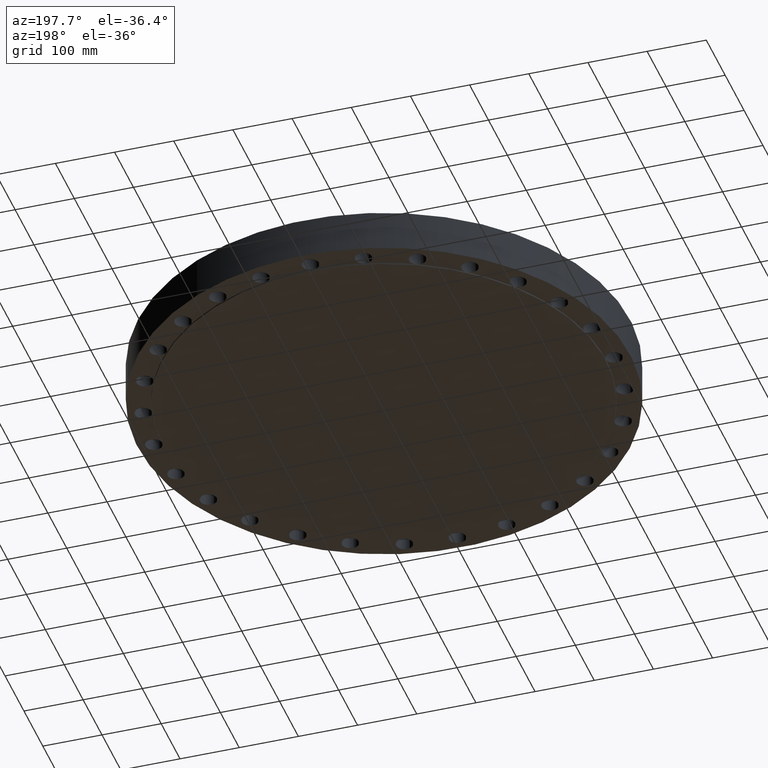
[diagram: clean part render]
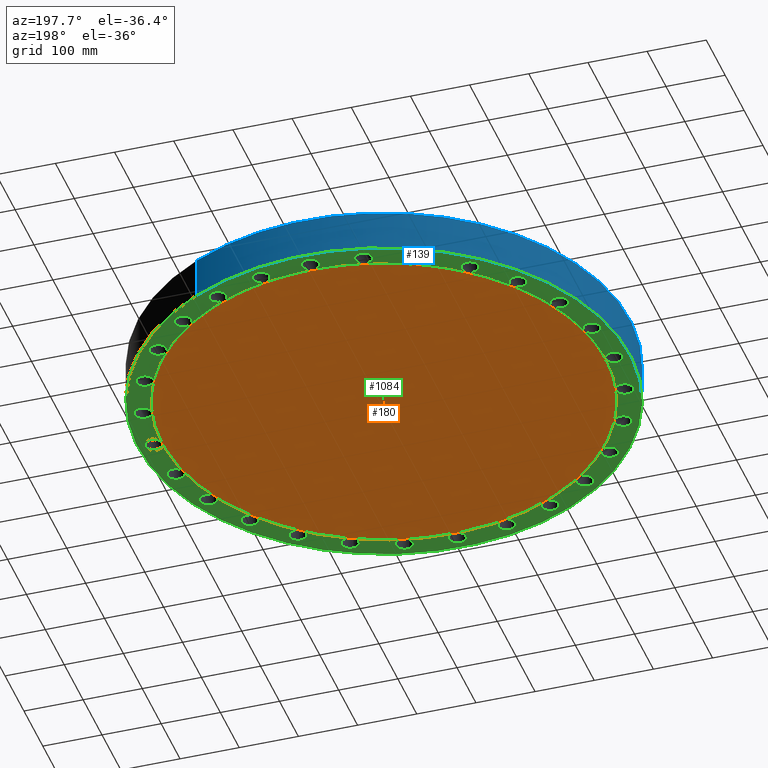
[diagram: same view with three faces highlighted in distinct colors, each labeled with its STEP entity id]
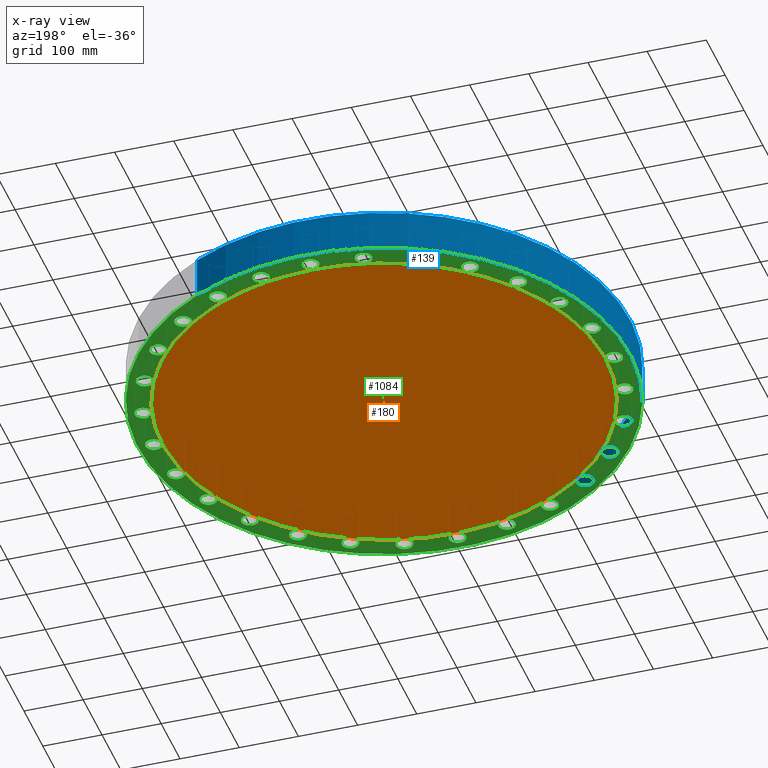
[diagram: x-ray of the same camera — body ghosted, the three highlighted faces saturated]
A machine part, auxiliary view with three faces highlighted in distinct colors.
The next image is the same camera in x-ray (body ghosted, the three faces saturated) — at least one of them is partly hidden behind the body in this view.
Their STEP definitions:

[orange] entity #180 — the highlighted planar face has unit normal (0, 0, -1).
#160=AXIS2_PLACEMENT_3D('Plane Axis2P3D',#157,#158,#159) ;
#164=AXIS2_PLACEMENT_3D('Circle Axis2P3D',#162,#163,$) ;
#173=AXIS2_PLACEMENT_3D('Circle Axis2P3D',#171,#172,$) ;
#157=CARTESIAN_POINT('Axis2P3D Location',(0.,0.,-0.0625000000002)) ;
#162=CARTESIAN_POINT('Axis2P3D Location',(0.,0.,-0.0625000000002)) ;
#166=CARTESIAN_POINT('Vertex',(7.07152669444,12.9443427879,-0.0625000000003)) ;
#168=CARTESIAN_POINT('Vertex',(-7.07152669444,-12.9443427879,-0.0625000000003)) ;
#171=CARTESIAN_POINT('Axis2P3D Location',(0.,0.,-0.0625000000002)) ;
#158=DIRECTION('Axis2P3D Direction',(0.,0.,-0.0393700787402)) ;
#159=DIRECTION('Axis2P3D XDirection',(0.0393700787402,0.,0.)) ;
#163=DIRECTION('Axis2P3D Direction',(0.,0.,-0.0393700787402)) ;
#172=DIRECTION('Axis2P3D Direction',(0.,0.,-0.0393700787402)) ;
#177=ORIENTED_EDGE('',*,*,#170,.T.) ;
#178=ORIENTED_EDGE('',*,*,#175,.T.) ;
#180=ADVANCED_FACE('PartBody',(#179),#161,.T.) ;
#165=CIRCLE('generated circle',#164,14.7500000001) ;
#174=CIRCLE('generated circle',#173,14.7500000001) ;
#170=EDGE_CURVE('',#167,#169,#165,.T.) ;
#175=EDGE_CURVE('',#169,#167,#174,.T.) ;
#176=EDGE_LOOP('',(#177,#178)) ;
#179=FACE_OUTER_BOUND('',#176,.T.) ;
#161=PLANE('',#160) ;
#167=VERTEX_POINT('',#166) ;
#169=VERTEX_POINT('',#168) ;

[blue] entity #139 — the highlighted cylindrical surface (partial cylindrical patch) has radius 415.925 mm, axis along (0, 0, -1).
#103=AXIS2_PLACEMENT_3D('Cylinder Axis2P3D',#100,#101,#102) ;
#107=AXIS2_PLACEMENT_3D('Circle Axis2P3D',#105,#106,$) ;
#123=AXIS2_PLACEMENT_3D('Circle Axis2P3D',#121,#122,$) ;
#100=CARTESIAN_POINT('Axis2P3D Location',(0.,0.,1.34375000001)) ;
#105=CARTESIAN_POINT('Axis2P3D Location',(0.,0.,2.51767111096E-015)) ;
#109=CARTESIAN_POINT('Vertex',(-7.85059319468,-14.370414451,2.23792987641E-015)) ;
#111=CARTESIAN_POINT('Vertex',(7.85059319468,14.370414451,2.23792987641E-015)) ;
#114=CARTESIAN_POINT('Line Origine',(-7.85059319468,-14.370414451,1.37500000001)) ;
#118=CARTESIAN_POINT('Vertex',(-7.85059319468,-14.370414451,2.75000000001)) ;
#121=CARTESIAN_POINT('Axis2P3D Location',(0.,0.,2.75000000001)) ;
#125=CARTESIAN_POINT('Vertex',(7.85059319468,14.370414451,2.75000000001)) ;
#128=CARTESIAN_POINT('Line Origine',(7.85059319468,14.370414451,1.37500000001)) ;
#101=DIRECTION('Axis2P3D Direction',(0.,0.,-0.0393700787402)) ;
#102=DIRECTION('Axis2P3D XDirection',(0.0188750212049,0.0345504945626,0.)) ;
#106=DIRECTION('Axis2P3D Direction',(0.,0.,-0.0393700787402)) ;
#115=DIRECTION('Vector Direction',(0.,0.,-0.0393700787402)) ;
#122=DIRECTION('Axis2P3D Direction',(0.,0.,-0.0393700787402)) ;
#129=DIRECTION('Vector Direction',(0.,0.,-0.0393700787402)) ;
#116=VECTOR('Line Direction',#115,0.0393700787402) ;
#130=VECTOR('Line Direction',#129,0.0393700787402) ;
#134=ORIENTED_EDGE('',*,*,#113,.F.) ;
#135=ORIENTED_EDGE('',*,*,#120,.T.) ;
#136=ORIENTED_EDGE('',*,*,#127,.T.) ;
#137=ORIENTED_EDGE('',*,*,#132,.F.) ;
#139=ADVANCED_FACE('PartBody',(#138),#104,.T.) ;
#108=CIRCLE('generated circle',#107,16.3750000001) ;
#124=CIRCLE('generated circle',#123,16.3750000001) ;
#104=CYLINDRICAL_SURFACE('generated cylinder',#103,16.3750000001) ;
#113=EDGE_CURVE('',#110,#112,#108,.T.) ;
#120=EDGE_CURVE('',#110,#119,#117,.F.) ;
#127=EDGE_CURVE('',#119,#126,#124,.T.) ;
#132=EDGE_CURVE('',#112,#126,#131,.F.) ;
#133=EDGE_LOOP('',(#134,#135,#136,#137)) ;
#138=FACE_OUTER_BOUND('',#133,.T.) ;
#117=LINE('Line',#114,#116) ;
#131=LINE('Line',#128,#130) ;
#110=VERTEX_POINT('',#109) ;
#112=VERTEX_POINT('',#111) ;
#119=VERTEX_POINT('',#118) ;
#126=VERTEX_POINT('',#125) ;

[green] entity #1084 — the highlighted planar face has unit normal (0, 0, -1).
#51=AXIS2_PLACEMENT_3D('Circle Axis2P3D',#49,#50,$) ;
#77=AXIS2_PLACEMENT_3D('Circle Axis2P3D',#75,#76,$) ;
#84=AXIS2_PLACEMENT_3D('Circle Axis2P3D',#82,#83,$) ;
#107=AXIS2_PLACEMENT_3D('Circle Axis2P3D',#105,#106,$) ;
#142=AXIS2_PLACEMENT_3D('Circle Axis2P3D',#140,#141,$) ;
#195=AXIS2_PLACEMENT_3D('Circle Axis2P3D',#193,#194,$) ;
#202=AXIS2_PLACEMENT_3D('Circle Axis2P3D',#200,#201,$) ;
#209=AXIS2_PLACEMENT_3D('Circle Axis2P3D',#207,#208,$) ;
#216=AXIS2_PLACEMENT_3D('Circle Axis2P3D',#214,#215,$) ;
#223=AXIS2_PLACEMENT_3D('Circle Axis2P3D',#221,#222,$) ;
#228=AXIS2_PLACEMENT_3D('Circle Axis2P3D',#226,#227,$) ;
#235=AXIS2_PLACEMENT_3D('Circle Axis2P3D',#233,#234,$) ;
#242=AXIS2_PLACEMENT_3D('Circle Axis2P3D',#240,#241,$) ;
#249=AXIS2_PLACEMENT_3D('Circle Axis2P3D',#247,#248,$) ;
#256=AXIS2_PLACEMENT_3D('Circle Axis2P3D',#254,#255,$) ;
#263=AXIS2_PLACEMENT_3D('Circle Axis2P3D',#261,#262,$) ;
#270=AXIS2_PLACEMENT_3D('Circle Axis2P3D',#268,#269,$) ;
#277=AXIS2_PLACEMENT_3D('Circle Axis2P3D',#275,#276,$) ;
#284=AXIS2_PLACEMENT_3D('Circle Axis2P3D',#282,#283,$) ;
#291=AXIS2_PLACEMENT_3D('Circle Axis2P3D',#289,#290,$) ;
#324=AXIS2_PLACEMENT_3D('Circle Axis2P3D',#322,#323,$) ;
#331=AXIS2_PLACEMENT_3D('Circle Axis2P3D',#329,#330,$) ;
#338=AXIS2_PLACEMENT_3D('Circle Axis2P3D',#336,#337,$) ;
#345=AXIS2_PLACEMENT_3D('Circle Axis2P3D',#343,#344,$) ;
#352=AXIS2_PLACEMENT_3D('Circle Axis2P3D',#350,#351,$) ;
#359=AXIS2_PLACEMENT_3D('Circle Axis2P3D',#357,#358,$) ;
#366=AXIS2_PLACEMENT_3D('Circle Axis2P3D',#364,#365,$) ;
#373=AXIS2_PLACEMENT_3D('Circle Axis2P3D',#371,#372,$) ;
#380=AXIS2_PLACEMENT_3D('Circle Axis2P3D',#378,#379,$) ;
#387=AXIS2_PLACEMENT_3D('Circle Axis2P3D',#385,#386,$) ;
#394=AXIS2_PLACEMENT_3D('Circle Axis2P3D',#392,#393,$) ;
#401=AXIS2_PLACEMENT_3D('Circle Axis2P3D',#399,#400,$) ;
#408=AXIS2_PLACEMENT_3D('Circle Axis2P3D',#406,#407,$) ;
#415=AXIS2_PLACEMENT_3D('Circle Axis2P3D',#413,#414,$) ;
#422=AXIS2_PLACEMENT_3D('Circle Axis2P3D',#420,#421,$) ;
#449=AXIS2_PLACEMENT_3D('Plane Axis2P3D',#446,#447,#448) ;
#457=AXIS2_PLACEMENT_3D('Circle Axis2P3D',#455,#456,$) ;
#464=AXIS2_PLACEMENT_3D('Circle Axis2P3D',#462,#463,$) ;
#471=AXIS2_PLACEMENT_3D('Circle Axis2P3D',#469,#470,$) ;
#476=AXIS2_PLACEMENT_3D('Circle Axis2P3D',#474,#475,$) ;
#483=AXIS2_PLACEMENT_3D('Circle Axis2P3D',#481,#482,$) ;
#490=AXIS2_PLACEMENT_3D('Circle Axis2P3D',#488,#489,$) ;
#495=AXIS2_PLACEMENT_3D('Circle Axis2P3D',#493,#494,$) ;
#502=AXIS2_PLACEMENT_3D('Circle Axis2P3D',#500,#501,$) ;
#509=AXIS2_PLACEMENT_3D('Circle Axis2P3D',#507,#508,$) ;
#514=AXIS2_PLACEMENT_3D('Circle Axis2P3D',#512,#513,$) ;
#521=AXIS2_PLACEMENT_3D('Circle Axis2P3D',#519,#520,$) ;
#528=AXIS2_PLACEMENT_3D('Circle Axis2P3D',#526,#527,$) ;
#533=AXIS2_PLACEMENT_3D('Circle Axis2P3D',#531,#532,$) ;
#540=AXIS2_PLACEMENT_3D('Circle Axis2P3D',#538,#539,$) ;
#547=AXIS2_PLACEMENT_3D('Circle Axis2P3D',#545,#546,$) ;
#552=AXIS2_PLACEMENT_3D('Circle Axis2P3D',#550,#551,$) ;
#559=AXIS2_PLACEMENT_3D('Circle Axis2P3D',#557,#558,$) ;
#566=AXIS2_PLACEMENT_3D('Circle Axis2P3D',#564,#565,$) ;
#571=AXIS2_PLACEMENT_3D('Circle Axis2P3D',#569,#570,$) ;
#578=AXIS2_PLACEMENT_3D('Circle Axis2P3D',#576,#577,$) ;
#585=AXIS2_PLACEMENT_3D('Circle Axis2P3D',#583,#584,$) ;
#590=AXIS2_PLACEMENT_3D('Circle Axis2P3D',#588,#589,$) ;
#597=AXIS2_PLACEMENT_3D('Circle Axis2P3D',#595,#596,$) ;
#604=AXIS2_PLACEMENT_3D('Circle Axis2P3D',#602,#603,$) ;
#609=AXIS2_PLACEMENT_3D('Circle Axis2P3D',#607,#608,$) ;
#616=AXIS2_PLACEMENT_3D('Circle Axis2P3D',#614,#615,$) ;
#623=AXIS2_PLACEMENT_3D('Circle Axis2P3D',#621,#622,$) ;
#628=AXIS2_PLACEMENT_3D('Circle Axis2P3D',#626,#627,$) ;
#635=AXIS2_PLACEMENT_3D('Circle Axis2P3D',#633,#634,$) ;
#642=AXIS2_PLACEMENT_3D('Circle Axis2P3D',#640,#641,$) ;
#647=AXIS2_PLACEMENT_3D('Circle Axis2P3D',#645,#646,$) ;
#654=AXIS2_PLACEMENT_3D('Circle Axis2P3D',#652,#653,$) ;
#661=AXIS2_PLACEMENT_3D('Circle Axis2P3D',#659,#660,$) ;
#666=AXIS2_PLACEMENT_3D('Circle Axis2P3D',#664,#665,$) ;
#673=AXIS2_PLACEMENT_3D('Circle Axis2P3D',#671,#672,$) ;
#680=AXIS2_PLACEMENT_3D('Circle Axis2P3D',#678,#679,$) ;
#685=AXIS2_PLACEMENT_3D('Circle Axis2P3D',#683,#684,$) ;
#692=AXIS2_PLACEMENT_3D('Circle Axis2P3D',#690,#691,$) ;
#699=AXIS2_PLACEMENT_3D('Circle Axis2P3D',#697,#698,$) ;
#704=AXIS2_PLACEMENT_3D('Circle Axis2P3D',#702,#703,$) ;
#711=AXIS2_PLACEMENT_3D('Circle Axis2P3D',#709,#710,$) ;
#718=AXIS2_PLACEMENT_3D('Circle Axis2P3D',#716,#717,$) ;
#723=AXIS2_PLACEMENT_3D('Circle Axis2P3D',#721,#722,$) ;
#730=AXIS2_PLACEMENT_3D('Circle Axis2P3D',#728,#729,$) ;
#737=AXIS2_PLACEMENT_3D('Circle Axis2P3D',#735,#736,$) ;
#742=AXIS2_PLACEMENT_3D('Circle Axis2P3D',#740,#741,$) ;
#749=AXIS2_PLACEMENT_3D('Circle Axis2P3D',#747,#748,$) ;
#756=AXIS2_PLACEMENT_3D('Circle Axis2P3D',#754,#755,$) ;
#761=AXIS2_PLACEMENT_3D('Circle Axis2P3D',#759,#760,$) ;
#768=AXIS2_PLACEMENT_3D('Circle Axis2P3D',#766,#767,$) ;
#775=AXIS2_PLACEMENT_3D('Circle Axis2P3D',#773,#774,$) ;
#780=AXIS2_PLACEMENT_3D('Circle Axis2P3D',#778,#779,$) ;
#787=AXIS2_PLACEMENT_3D('Circle Axis2P3D',#785,#786,$) ;
#794=AXIS2_PLACEMENT_3D('Circle Axis2P3D',#792,#793,$) ;
#799=AXIS2_PLACEMENT_3D('Circle Axis2P3D',#797,#798,$) ;
#806=AXIS2_PLACEMENT_3D('Circle Axis2P3D',#804,#805,$) ;
#813=AXIS2_PLACEMENT_3D('Circle Axis2P3D',#811,#812,$) ;
#818=AXIS2_PLACEMENT_3D('Circle Axis2P3D',#816,#817,$) ;
#825=AXIS2_PLACEMENT_3D('Circle Axis2P3D',#823,#824,$) ;
#832=AXIS2_PLACEMENT_3D('Circle Axis2P3D',#830,#831,$) ;
#837=AXIS2_PLACEMENT_3D('Circle Axis2P3D',#835,#836,$) ;
#844=AXIS2_PLACEMENT_3D('Circle Axis2P3D',#842,#843,$) ;
#851=AXIS2_PLACEMENT_3D('Circle Axis2P3D',#849,#850,$) ;
#856=AXIS2_PLACEMENT_3D('Circle Axis2P3D',#854,#855,$) ;
#863=AXIS2_PLACEMENT_3D('Circle Axis2P3D',#861,#862,$) ;
#870=AXIS2_PLACEMENT_3D('Circle Axis2P3D',#868,#869,$) ;
#875=AXIS2_PLACEMENT_3D('Circle Axis2P3D',#873,#874,$) ;
#882=AXIS2_PLACEMENT_3D('Circle Axis2P3D',#880,#881,$) ;
#889=AXIS2_PLACEMENT_3D('Circle Axis2P3D',#887,#888,$) ;
#894=AXIS2_PLACEMENT_3D('Circle Axis2P3D',#892,#893,$) ;
#901=AXIS2_PLACEMENT_3D('Circle Axis2P3D',#899,#900,$) ;
#908=AXIS2_PLACEMENT_3D('Circle Axis2P3D',#906,#907,$) ;
#913=AXIS2_PLACEMENT_3D('Circle Axis2P3D',#911,#912,$) ;
#920=AXIS2_PLACEMENT_3D('Circle Axis2P3D',#918,#919,$) ;
#927=AXIS2_PLACEMENT_3D('Circle Axis2P3D',#925,#926,$) ;
#932=AXIS2_PLACEMENT_3D('Circle Axis2P3D',#930,#931,$) ;
#939=AXIS2_PLACEMENT_3D('Circle Axis2P3D',#937,#938,$) ;
#946=AXIS2_PLACEMENT_3D('Circle Axis2P3D',#944,#945,$) ;
#951=AXIS2_PLACEMENT_3D('Circle Axis2P3D',#949,#950,$) ;
#958=AXIS2_PLACEMENT_3D('Circle Axis2P3D',#956,#957,$) ;
#965=AXIS2_PLACEMENT_3D('Circle Axis2P3D',#963,#964,$) ;
#44=CARTESIAN_POINT('Vertex',(14.8191658526,0.270875429312,0.)) ;
#49=CARTESIAN_POINT('Axis2P3D Location',(15.3150000001,0.,0.)) ;
#53=CARTESIAN_POINT('Vertex',(15.8108341475,-0.270875429312,0.)) ;
#75=CARTESIAN_POINT('Axis2P3D Location',(15.3150000001,0.,0.)) ;
#79=CARTESIAN_POINT('Vertex',(14.7500000001,-9.48792363313E-015,1.67844740731E-015)) ;
#82=CARTESIAN_POINT('Axis2P3D Location',(15.3150000001,0.,0.)) ;
#105=CARTESIAN_POINT('Axis2P3D Location',(0.,0.,2.51767111096E-015)) ;
#109=CARTESIAN_POINT('Vertex',(-7.85059319468,-14.370414451,2.23792987641E-015)) ;
#111=CARTESIAN_POINT('Vertex',(7.85059319468,14.370414451,2.23792987641E-015)) ;
#140=CARTESIAN_POINT('Axis2P3D Location',(0.,0.,2.51767111096E-015)) ;
#190=CARTESIAN_POINT('Vertex',(7.07152669444,12.9443427879,1.67844740731E-015)) ;
#193=CARTESIAN_POINT('Axis2P3D Location',(0.,0.,1.67844740731E-015)) ;
#197=CARTESIAN_POINT('Vertex',(9.19647457745,11.5320143664,0.)) ;
#200=CARTESIAN_POINT('Axis2P3D Location',(0.,0.,1.67844740731E-015)) ;
#204=CARTESIAN_POINT('Vertex',(11.5320143664,9.19647457745,0.)) ;
#207=CARTESIAN_POINT('Axis2P3D Location',(0.,0.,1.67844740731E-015)) ;
#211=CARTESIAN_POINT('Vertex',(13.2892908016,6.39978515201,0.)) ;
#214=CARTESIAN_POINT('Axis2P3D Location',(0.,0.,1.67844740731E-015)) ;
#218=CARTESIAN_POINT('Vertex',(14.3801867047,3.28218377587,0.)) ;
#221=CARTESIAN_POINT('Axis2P3D Location',(0.,0.,1.67844740731E-015)) ;
#226=CARTESIAN_POINT('Axis2P3D Location',(0.,0.,1.67844740731E-015)) ;
#230=CARTESIAN_POINT('Vertex',(14.3801867047,-3.28218377587,0.)) ;
#233=CARTESIAN_POINT('Axis2P3D Location',(0.,0.,1.67844740731E-015)) ;
#237=CARTESIAN_POINT('Vertex',(13.2892908016,-6.39978515201,0.)) ;
#240=CARTESIAN_POINT('Axis2P3D Location',(0.,0.,1.67844740731E-015)) ;
#244=CARTESIAN_POINT('Vertex',(11.5320143664,-9.19647457745,0.)) ;
#247=CARTESIAN_POINT('Axis2P3D Location',(0.,0.,1.67844740731E-015)) ;
#251=CARTESIAN_POINT('Vertex',(9.19647457745,-11.5320143664,0.)) ;
#254=CARTESIAN_POINT('Axis2P3D Location',(0.,0.,1.67844740731E-015)) ;
#258=CARTESIAN_POINT('Vertex',(6.39978515201,-13.2892908016,0.)) ;
#261=CARTESIAN_POINT('Axis2P3D Location',(0.,0.,1.67844740731E-015)) ;
#265=CARTESIAN_POINT('Vertex',(3.28218377587,-14.3801867047,0.)) ;
#268=CARTESIAN_POINT('Axis2P3D Location',(0.,0.,1.67844740731E-015)) ;
#272=CARTESIAN_POINT('Vertex',(2.83349414656E-015,-14.7500000001,0.)) ;
#275=CARTESIAN_POINT('Axis2P3D Location',(0.,0.,1.67844740731E-015)) ;
#279=CARTESIAN_POINT('Vertex',(-3.28218377587,-14.3801867047,0.)) ;
#282=CARTESIAN_POINT('Axis2P3D Location',(0.,0.,1.67844740731E-015)) ;
#286=CARTESIAN_POINT('Vertex',(-6.39978515201,-13.2892908016,0.)) ;
#289=CARTESIAN_POINT('Axis2P3D Location',(0.,0.,1.67844740731E-015)) ;
#293=CARTESIAN_POINT('Vertex',(-7.07152669444,-12.9443427879,1.67844740731E-015)) ;
#322=CARTESIAN_POINT('Axis2P3D Location',(0.,0.,1.67844740731E-015)) ;
#326=CARTESIAN_POINT('Vertex',(-9.19647457745,-11.5320143664,0.)) ;
#329=CARTESIAN_POINT('Axis2P3D Location',(0.,0.,1.67844740731E-015)) ;
#333=CARTESIAN_POINT('Vertex',(-11.5320143664,-9.19647457745,0.)) ;
#336=CARTESIAN_POINT('Axis2P3D Location',(0.,0.,1.67844740731E-015)) ;
#340=CARTESIAN_POINT('Vertex',(-13.2892908016,-6.39978515201,0.)) ;
#343=CARTESIAN_POINT('Axis2P3D Location',(0.,0.,1.67844740731E-015)) ;
#347=CARTESIAN_POINT('Vertex',(-14.3801867047,-3.28218377587,0.)) ;
#350=CARTESIAN_POINT('Axis2P3D Location',(0.,0.,1.67844740731E-015)) ;
#354=CARTESIAN_POINT('Vertex',(-14.7500000001,-8.95171950564E-015,0.)) ;
#357=CARTESIAN_POINT('Axis2P3D Location',(0.,0.,1.67844740731E-015)) ;
#361=CARTESIAN_POINT('Vertex',(-14.3801867047,3.28218377587,0.)) ;
#364=CARTESIAN_POINT('Axis2P3D Location',(0.,0.,1.67844740731E-015)) ;
#368=CARTESIAN_POINT('Vertex',(-13.2892908016,6.39978515201,0.)) ;
#371=CARTESIAN_POINT('Axis2P3D Location',(0.,0.,1.67844740731E-015)) ;
#375=CARTESIAN_POINT('Vertex',(-11.5320143664,9.19647457745,0.)) ;
#378=CARTESIAN_POINT('Axis2P3D Location',(0.,0.,1.67844740731E-015)) ;
#382=CARTESIAN_POINT('Vertex',(-9.19647457745,11.5320143664,0.)) ;
#385=CARTESIAN_POINT('Axis2P3D Location',(0.,0.,1.67844740731E-015)) ;
#389=CARTESIAN_POINT('Vertex',(-6.39978515201,13.2892908016,0.)) ;
#392=CARTESIAN_POINT('Axis2P3D Location',(0.,0.,1.67844740731E-015)) ;
#396=CARTESIAN_POINT('Vertex',(-3.28218377587,14.3801867047,0.)) ;
#399=CARTESIAN_POINT('Axis2P3D Location',(0.,0.,1.67844740731E-015)) ;
#403=CARTESIAN_POINT('Vertex',(-2.55449567649E-015,14.7500000001,0.)) ;
#406=CARTESIAN_POINT('Axis2P3D Location',(0.,0.,1.67844740731E-015)) ;
#410=CARTESIAN_POINT('Vertex',(3.28218377587,14.3801867047,0.)) ;
#413=CARTESIAN_POINT('Axis2P3D Location',(0.,0.,1.67844740731E-015)) ;
#417=CARTESIAN_POINT('Vertex',(6.39978515201,13.2892908016,0.)) ;
#420=CARTESIAN_POINT('Axis2P3D Location',(0.,0.,1.67844740731E-015)) ;
#446=CARTESIAN_POINT('Axis2P3D Location',(0.,14.7500000001,0.)) ;
#455=CARTESIAN_POINT('Axis2P3D Location',(13.798338212,-6.64492946461,0.)) ;
#459=CARTESIAN_POINT('Vertex',(14.1275408984,-7.10411416739,0.)) ;
#462=CARTESIAN_POINT('Axis2P3D Location',(13.798338212,-6.64492946461,0.)) ;
#466=CARTESIAN_POINT('Vertex',(13.4691355256,-6.18574476184,0.)) ;
#469=CARTESIAN_POINT('Axis2P3D Location',(13.798338212,-6.64492946461,0.)) ;
#474=CARTESIAN_POINT('Axis2P3D Location',(14.9310209751,-3.40790810355,0.)) ;
#478=CARTESIAN_POINT('Vertex',(15.3541480718,-3.7823255979,0.)) ;
#481=CARTESIAN_POINT('Axis2P3D Location',(14.9310209751,-3.40790810355,0.)) ;
#485=CARTESIAN_POINT('Vertex',(14.5078938785,-3.03349060921,0.)) ;
#488=CARTESIAN_POINT('Axis2P3D Location',(14.9310209751,-3.40790810355,0.)) ;
#493=CARTESIAN_POINT('Axis2P3D Location',(14.9310209751,3.40790810355,0.)) ;
#497=CARTESIAN_POINT('Vertex',(15.4746989788,3.25415756438,0.)) ;
#500=CARTESIAN_POINT('Axis2P3D Location',(14.9310209751,3.40790810355,0.)) ;
#504=CARTESIAN_POINT('Vertex',(14.3873429714,3.56165864273,0.)) ;
#507=CARTESIAN_POINT('Axis2P3D Location',(14.9310209751,3.40790810355,0.)) ;
#512=CARTESIAN_POINT('Axis2P3D Location',(13.798338212,6.64492946461,0.)) ;
#516=CARTESIAN_POINT('Vertex',(14.3625977866,6.61601350961,0.)) ;
#519=CARTESIAN_POINT('Axis2P3D Location',(13.798338212,6.64492946461,0.)) ;
#523=CARTESIAN_POINT('Vertex',(13.2340786374,6.67384541962,0.)) ;
#526=CARTESIAN_POINT('Axis2P3D Location',(13.798338212,6.64492946461,0.)) ;
#531=CARTESIAN_POINT('Axis2P3D Location',(11.973749154,9.5487463155,0.)) ;
#535=CARTESIAN_POINT('Vertex',(12.5302959684,9.6461149114,0.)) ;
#538=CARTESIAN_POINT('Axis2P3D Location',(11.973749154,9.5487463155,0.)) ;
#542=CARTESIAN_POINT('Vertex',(11.4172023397,9.45137771961,0.)) ;
#545=CARTESIAN_POINT('Axis2P3D Location',(11.973749154,9.5487463155,0.)) ;
#550=CARTESIAN_POINT('Axis2P3D Location',(9.5487463155,11.973749154,0.)) ;
#554=CARTESIAN_POINT('Vertex',(10.0696727883,12.1925198329,0.)) ;
#557=CARTESIAN_POINT('Axis2P3D Location',(9.5487463155,11.973749154,0.)) ;
#561=CARTESIAN_POINT('Vertex',(9.02781984268,11.7549784752,0.)) ;
#564=CARTESIAN_POINT('Axis2P3D Location',(9.5487463155,11.973749154,0.)) ;
#569=CARTESIAN_POINT('Axis2P3D Location',(6.64492946461,13.798338212,0.)) ;
#573=CARTESIAN_POINT('Vertex',(7.10411416739,14.1275408984,0.)) ;
#576=CARTESIAN_POINT('Axis2P3D Location',(6.64492946461,13.798338212,0.)) ;
#580=CARTESIAN_POINT('Vertex',(6.18574476184,13.4691355256,0.)) ;
#583=CARTESIAN_POINT('Axis2P3D Location',(6.64492946461,13.798338212,0.)) ;
#588=CARTESIAN_POINT('Axis2P3D Location',(3.40790810355,14.9310209751,0.)) ;
#592=CARTESIAN_POINT('Vertex',(3.7823255979,15.3541480718,0.)) ;
#595=CARTESIAN_POINT('Axis2P3D Location',(3.40790810355,14.9310209751,0.)) ;
#599=CARTESIAN_POINT('Vertex',(3.03349060921,14.5078938785,0.)) ;
#602=CARTESIAN_POINT('Axis2P3D Location',(3.40790810355,14.9310209751,0.)) ;
#607=CARTESIAN_POINT('Axis2P3D Location',(-2.72747703687E-015,15.3150000001,0.)) ;
#611=CARTESIAN_POINT('Vertex',(0.270875429312,15.8108341475,0.)) ;
#614=CARTESIAN_POINT('Axis2P3D Location',(-1.74838271595E-015,15.3150000001,0.)) ;
#618=CARTESIAN_POINT('Vertex',(-0.270875429312,14.8191658526,0.)) ;
#621=CARTESIAN_POINT('Axis2P3D Location',(-2.72747703687E-015,15.3150000001,0.)) ;
#626=CARTESIAN_POINT('Axis2P3D Location',(-3.40790810355,14.9310209751,0.)) ;
#630=CARTESIAN_POINT('Vertex',(-3.25415756438,15.4746989788,0.)) ;
#633=CARTESIAN_POINT('Axis2P3D Location',(-3.40790810355,14.9310209751,0.)) ;
#637=CARTESIAN_POINT('Vertex',(-3.56165864273,14.3873429714,0.)) ;
#640=CARTESIAN_POINT('Axis2P3D Location',(-3.40790810355,14.9310209751,0.)) ;
#645=CARTESIAN_POINT('Axis2P3D Location',(-6.64492946461,13.798338212,0.)) ;
#649=CARTESIAN_POINT('Vertex',(-6.61601350961,14.3625977866,0.)) ;
#652=CARTESIAN_POINT('Axis2P3D Location',(-6.64492946461,13.798338212,0.)) ;
#656=CARTESIAN_POINT('Vertex',(-6.67384541962,13.2340786374,0.)) ;
#659=CARTESIAN_POINT('Axis2P3D Location',(-6.64492946461,13.798338212,0.)) ;
#664=CARTESIAN_POINT('Axis2P3D Location',(-9.5487463155,11.973749154,0.)) ;
#668=CARTESIAN_POINT('Vertex',(-9.6461149114,12.5302959684,0.)) ;
#671=CARTESIAN_POINT('Axis2P3D Location',(-9.5487463155,11.973749154,0.)) ;
#675=CARTESIAN_POINT('Vertex',(-9.45137771961,11.4172023397,0.)) ;
#678=CARTESIAN_POINT('Axis2P3D Location',(-9.5487463155,11.973749154,0.)) ;
#683=CARTESIAN_POINT('Axis2P3D Location',(-11.973749154,9.5487463155,0.)) ;
#687=CARTESIAN_POINT('Vertex',(-12.1925198329,10.0696727883,0.)) ;
#690=CARTESIAN_POINT('Axis2P3D Location',(-11.973749154,9.5487463155,0.)) ;
#694=CARTESIAN_POINT('Vertex',(-11.7549784752,9.02781984268,0.)) ;
#697=CARTESIAN_POINT('Axis2P3D Location',(-11.973749154,9.5487463155,0.)) ;
#702=CARTESIAN_POINT('Axis2P3D Location',(-13.798338212,6.64492946461,0.)) ;
#706=CARTESIAN_POINT('Vertex',(-14.1275408984,7.10411416739,0.)) ;
#709=CARTESIAN_POINT('Axis2P3D Location',(-13.798338212,6.64492946461,0.)) ;
#713=CARTESIAN_POINT('Vertex',(-13.4691355256,6.18574476184,0.)) ;
#716=CARTESIAN_POINT('Axis2P3D Location',(-13.798338212,6.64492946461,0.)) ;
#721=CARTESIAN_POINT('Axis2P3D Location',(-14.9310209751,3.40790810355,0.)) ;
#725=CARTESIAN_POINT('Vertex',(-15.3541480718,3.7823255979,0.)) ;
#728=CARTESIAN_POINT('Axis2P3D Location',(-14.9310209751,3.40790810355,0.)) ;
#732=CARTESIAN_POINT('Vertex',(-14.5078938785,3.03349060921,0.)) ;
#735=CARTESIAN_POINT('Axis2P3D Location',(-14.9310209751,3.40790810355,0.)) ;
#740=CARTESIAN_POINT('Axis2P3D Location',(-15.3150000001,-8.95171950564E-015,0.)) ;
#744=CARTESIAN_POINT('Vertex',(-15.8108341475,0.270875429312,0.)) ;
#747=CARTESIAN_POINT('Axis2P3D Location',(-15.3150000001,-8.95171950564E-015,0.)) ;
#751=CARTESIAN_POINT('Vertex',(-14.8191658526,-0.270875429312,0.)) ;
#754=CARTESIAN_POINT('Axis2P3D Location',(-15.3150000001,-8.95171950564E-015,0.)) ;
#759=CARTESIAN_POINT('Axis2P3D Location',(-14.9310209751,-3.40790810355,0.)) ;
#763=CARTESIAN_POINT('Vertex',(-15.4746989788,-3.25415756438,0.)) ;
#766=CARTESIAN_POINT('Axis2P3D Location',(-14.9310209751,-3.40790810355,0.)) ;
#770=CARTESIAN_POINT('Vertex',(-14.3873429714,-3.56165864273,0.)) ;
#773=CARTESIAN_POINT('Axis2P3D Location',(-14.9310209751,-3.40790810355,0.)) ;
#778=CARTESIAN_POINT('Axis2P3D Location',(-13.798338212,-6.64492946461,0.)) ;
#782=CARTESIAN_POINT('Vertex',(-14.3625977866,-6.61601350961,-2.23792987641E-015)) ;
#785=CARTESIAN_POINT('Axis2P3D Location',(-13.798338212,-6.64492946461,0.)) ;
#789=CARTESIAN_POINT('Vertex',(-13.2340786374,-6.67384541962,0.)) ;
#792=CARTESIAN_POINT('Axis2P3D Location',(-13.798338212,-6.64492946461,0.)) ;
#797=CARTESIAN_POINT('Axis2P3D Location',(-11.973749154,-9.5487463155,0.)) ;
#801=CARTESIAN_POINT('Vertex',(-12.5302959684,-9.6461149114,0.)) ;
#804=CARTESIAN_POINT('Axis2P3D Location',(-11.973749154,-9.5487463155,0.)) ;
#808=CARTESIAN_POINT('Vertex',(-11.4172023397,-9.45137771961,0.)) ;
#811=CARTESIAN_POINT('Axis2P3D Location',(-11.973749154,-9.5487463155,0.)) ;
#816=CARTESIAN_POINT('Axis2P3D Location',(-9.5487463155,-11.973749154,0.)) ;
#820=CARTESIAN_POINT('Vertex',(-10.0696727883,-12.1925198329,0.)) ;
#823=CARTESIAN_POINT('Axis2P3D Location',(-9.5487463155,-11.973749154,0.)) ;
#827=CARTESIAN_POINT('Vertex',(-9.02781984268,-11.7549784752,0.)) ;
#830=CARTESIAN_POINT('Axis2P3D Location',(-9.5487463155,-11.973749154,0.)) ;
#835=CARTESIAN_POINT('Axis2P3D Location',(-6.64492946461,-13.798338212,0.)) ;
#839=CARTESIAN_POINT('Vertex',(-7.10411416739,-14.1275408984,0.)) ;
#842=CARTESIAN_POINT('Axis2P3D Location',(-6.64492946461,-13.798338212,0.)) ;
#846=CARTESIAN_POINT('Vertex',(-6.18574476184,-13.4691355256,0.)) ;
#849=CARTESIAN_POINT('Axis2P3D Location',(-6.64492946461,-13.798338212,0.)) ;
#854=CARTESIAN_POINT('Axis2P3D Location',(-3.40790810355,-14.9310209751,0.)) ;
#858=CARTESIAN_POINT('Vertex',(-3.7823255979,-15.3541480718,-2.23792987641E-015)) ;
#861=CARTESIAN_POINT('Axis2P3D Location',(-3.40790810355,-14.9310209751,0.)) ;
#865=CARTESIAN_POINT('Vertex',(-3.03349060921,-14.5078938785,0.)) ;
#868=CARTESIAN_POINT('Axis2P3D Location',(-3.40790810355,-14.9310209751,0.)) ;
#873=CARTESIAN_POINT('Axis2P3D Location',(2.93728296279E-015,-15.3150000001,0.)) ;
#877=CARTESIAN_POINT('Vertex',(-0.270875429312,-15.8108341475,0.)) ;
#880=CARTESIAN_POINT('Axis2P3D Location',(5.94450123421E-015,-15.3150000001,0.)) ;
#884=CARTESIAN_POINT('Vertex',(0.270875429312,-14.8191658526,0.)) ;
#887=CARTESIAN_POINT('Axis2P3D Location',(2.93728296279E-015,-15.3150000001,0.)) ;
#892=CARTESIAN_POINT('Axis2P3D Location',(3.40790810355,-14.9310209751,0.)) ;
#896=CARTESIAN_POINT('Vertex',(3.25415756438,-15.4746989788,0.)) ;
#899=CARTESIAN_POINT('Axis2P3D Location',(3.40790810355,-14.9310209751,0.)) ;
#903=CARTESIAN_POINT('Vertex',(3.56165864273,-14.3873429714,0.)) ;
#906=CARTESIAN_POINT('Axis2P3D Location',(3.40790810355,-14.9310209751,0.)) ;
#911=CARTESIAN_POINT('Axis2P3D Location',(6.64492946461,-13.798338212,0.)) ;
#915=CARTESIAN_POINT('Vertex',(6.61601350961,-14.3625977866,0.)) ;
#918=CARTESIAN_POINT('Axis2P3D Location',(6.64492946461,-13.798338212,0.)) ;
#922=CARTESIAN_POINT('Vertex',(6.67384541962,-13.2340786374,0.)) ;
#925=CARTESIAN_POINT('Axis2P3D Location',(6.64492946461,-13.798338212,0.)) ;
#930=CARTESIAN_POINT('Axis2P3D Location',(9.5487463155,-11.973749154,0.)) ;
#934=CARTESIAN_POINT('Vertex',(9.6461149114,-12.5302959684,0.)) ;
#937=CARTESIAN_POINT('Axis2P3D Location',(9.5487463155,-11.973749154,0.)) ;
#941=CARTESIAN_POINT('Vertex',(9.45137771961,-11.4172023397,0.)) ;
#944=CARTESIAN_POINT('Axis2P3D Location',(9.5487463155,-11.973749154,0.)) ;
#949=CARTESIAN_POINT('Axis2P3D Location',(11.973749154,-9.5487463155,0.)) ;
#953=CARTESIAN_POINT('Vertex',(12.1925198329,-10.0696727883,-2.23792987641E-015)) ;
#956=CARTESIAN_POINT('Axis2P3D Location',(11.973749154,-9.5487463155,0.)) ;
#960=CARTESIAN_POINT('Vertex',(11.7549784752,-9.02781984268,0.)) ;
#963=CARTESIAN_POINT('Axis2P3D Location',(11.973749154,-9.5487463155,0.)) ;
#50=DIRECTION('Axis2P3D Direction',(0.,-0.,-0.0393700787402)) ;
#76=DIRECTION('Axis2P3D Direction',(0.,-0.,-0.0393700787402)) ;
#83=DIRECTION('Axis2P3D Direction',(0.,-0.,-0.0393700787402)) ;
#106=DIRECTION('Axis2P3D Direction',(0.,0.,-0.0393700787402)) ;
#141=DIRECTION('Axis2P3D Direction',(0.,0.,-0.0393700787402)) ;
#194=DIRECTION('Axis2P3D Direction',(0.,0.,-0.0393700787402)) ;
#201=DIRECTION('Axis2P3D Direction',(0.,0.,-0.0393700787402)) ;
#208=DIRECTION('Axis2P3D Direction',(0.,0.,-0.0393700787402)) ;
#215=DIRECTION('Axis2P3D Direction',(0.,0.,-0.0393700787402)) ;
#222=DIRECTION('Axis2P3D Direction',(0.,0.,-0.0393700787402)) ;
#227=DIRECTION('Axis2P3D Direction',(0.,0.,-0.0393700787402)) ;
#234=DIRECTION('Axis2P3D Direction',(0.,0.,-0.0393700787402)) ;
#241=DIRECTION('Axis2P3D Direction',(0.,0.,-0.0393700787402)) ;
#248=DIRECTION('Axis2P3D Direction',(0.,0.,-0.0393700787402)) ;
#255=DIRECTION('Axis2P3D Direction',(0.,0.,-0.0393700787402)) ;
#262=DIRECTION('Axis2P3D Direction',(0.,0.,-0.0393700787402)) ;
#269=DIRECTION('Axis2P3D Direction',(0.,0.,-0.0393700787402)) ;
#276=DIRECTION('Axis2P3D Direction',(0.,0.,-0.0393700787402)) ;
#283=DIRECTION('Axis2P3D Direction',(0.,0.,-0.0393700787402)) ;
#290=DIRECTION('Axis2P3D Direction',(0.,0.,-0.0393700787402)) ;
#323=DIRECTION('Axis2P3D Direction',(0.,0.,-0.0393700787402)) ;
#330=DIRECTION('Axis2P3D Direction',(0.,0.,-0.0393700787402)) ;
#337=DIRECTION('Axis2P3D Direction',(0.,0.,-0.0393700787402)) ;
#344=DIRECTION('Axis2P3D Direction',(0.,0.,-0.0393700787402)) ;
#351=DIRECTION('Axis2P3D Direction',(0.,0.,-0.0393700787402)) ;
#358=DIRECTION('Axis2P3D Direction',(0.,0.,-0.0393700787402)) ;
#365=DIRECTION('Axis2P3D Direction',(0.,0.,-0.0393700787402)) ;
#372=DIRECTION('Axis2P3D Direction',(0.,0.,-0.0393700787402)) ;
#379=DIRECTION('Axis2P3D Direction',(0.,0.,-0.0393700787402)) ;
#386=DIRECTION('Axis2P3D Direction',(0.,0.,-0.0393700787402)) ;
#393=DIRECTION('Axis2P3D Direction',(0.,0.,-0.0393700787402)) ;
#400=DIRECTION('Axis2P3D Direction',(0.,0.,-0.0393700787402)) ;
#407=DIRECTION('Axis2P3D Direction',(0.,0.,-0.0393700787402)) ;
#414=DIRECTION('Axis2P3D Direction',(0.,0.,-0.0393700787402)) ;
#421=DIRECTION('Axis2P3D Direction',(0.,0.,-0.0393700787402)) ;
#447=DIRECTION('Axis2P3D Direction',(0.,0.,-0.0393700787402)) ;
#448=DIRECTION('Axis2P3D XDirection',(0.0393700787402,0.,0.)) ;
#456=DIRECTION('Axis2P3D Direction',(0.,0.,-0.0393700787402)) ;
#463=DIRECTION('Axis2P3D Direction',(0.,0.,-0.0393700787402)) ;
#470=DIRECTION('Axis2P3D Direction',(0.,0.,-0.0393700787402)) ;
#475=DIRECTION('Axis2P3D Direction',(0.,0.,-0.0393700787402)) ;
#482=DIRECTION('Axis2P3D Direction',(0.,0.,-0.0393700787402)) ;
#489=DIRECTION('Axis2P3D Direction',(0.,0.,-0.0393700787402)) ;
#494=DIRECTION('Axis2P3D Direction',(0.,0.,-0.0393700787402)) ;
#501=DIRECTION('Axis2P3D Direction',(0.,0.,-0.0393700787402)) ;
#508=DIRECTION('Axis2P3D Direction',(0.,0.,-0.0393700787402)) ;
#513=DIRECTION('Axis2P3D Direction',(0.,0.,-0.0393700787402)) ;
#520=DIRECTION('Axis2P3D Direction',(0.,0.,-0.0393700787402)) ;
#527=DIRECTION('Axis2P3D Direction',(0.,0.,-0.0393700787402)) ;
#532=DIRECTION('Axis2P3D Direction',(0.,0.,-0.0393700787402)) ;
#539=DIRECTION('Axis2P3D Direction',(0.,0.,-0.0393700787402)) ;
#546=DIRECTION('Axis2P3D Direction',(0.,0.,-0.0393700787402)) ;
#551=DIRECTION('Axis2P3D Direction',(0.,0.,-0.0393700787402)) ;
#558=DIRECTION('Axis2P3D Direction',(0.,0.,-0.0393700787402)) ;
#565=DIRECTION('Axis2P3D Direction',(0.,0.,-0.0393700787402)) ;
#570=DIRECTION('Axis2P3D Direction',(0.,0.,-0.0393700787402)) ;
#577=DIRECTION('Axis2P3D Direction',(0.,0.,-0.0393700787402)) ;
#584=DIRECTION('Axis2P3D Direction',(0.,0.,-0.0393700787402)) ;
#589=DIRECTION('Axis2P3D Direction',(0.,0.,-0.0393700787402)) ;
#596=DIRECTION('Axis2P3D Direction',(0.,0.,-0.0393700787402)) ;
#603=DIRECTION('Axis2P3D Direction',(0.,0.,-0.0393700787402)) ;
#608=DIRECTION('Axis2P3D Direction',(0.,0.,-0.0393700787402)) ;
#615=DIRECTION('Axis2P3D Direction',(0.,0.,-0.0393700787402)) ;
#622=DIRECTION('Axis2P3D Direction',(0.,0.,-0.0393700787402)) ;
#627=DIRECTION('Axis2P3D Direction',(0.,0.,-0.0393700787402)) ;
#634=DIRECTION('Axis2P3D Direction',(0.,0.,-0.0393700787402)) ;
#641=DIRECTION('Axis2P3D Direction',(0.,0.,-0.0393700787402)) ;
#646=DIRECTION('Axis2P3D Direction',(0.,0.,-0.0393700787402)) ;
#653=DIRECTION('Axis2P3D Direction',(0.,0.,-0.0393700787402)) ;
#660=DIRECTION('Axis2P3D Direction',(0.,0.,-0.0393700787402)) ;
#665=DIRECTION('Axis2P3D Direction',(0.,0.,-0.0393700787402)) ;
#672=DIRECTION('Axis2P3D Direction',(0.,0.,-0.0393700787402)) ;
#679=DIRECTION('Axis2P3D Direction',(0.,0.,-0.0393700787402)) ;
#684=DIRECTION('Axis2P3D Direction',(0.,0.,-0.0393700787402)) ;
#691=DIRECTION('Axis2P3D Direction',(0.,0.,-0.0393700787402)) ;
#698=DIRECTION('Axis2P3D Direction',(0.,0.,-0.0393700787402)) ;
#703=DIRECTION('Axis2P3D Direction',(0.,0.,-0.0393700787402)) ;
#710=DIRECTION('Axis2P3D Direction',(0.,0.,-0.0393700787402)) ;
#717=DIRECTION('Axis2P3D Direction',(0.,0.,-0.0393700787402)) ;
#722=DIRECTION('Axis2P3D Direction',(0.,0.,-0.0393700787402)) ;
#729=DIRECTION('Axis2P3D Direction',(0.,0.,-0.0393700787402)) ;
#736=DIRECTION('Axis2P3D Direction',(0.,0.,-0.0393700787402)) ;
#741=DIRECTION('Axis2P3D Direction',(0.,0.,-0.0393700787402)) ;
#748=DIRECTION('Axis2P3D Direction',(0.,0.,-0.0393700787402)) ;
#755=DIRECTION('Axis2P3D Direction',(0.,0.,-0.0393700787402)) ;
#760=DIRECTION('Axis2P3D Direction',(0.,0.,-0.0393700787402)) ;
#767=DIRECTION('Axis2P3D Direction',(0.,0.,-0.0393700787402)) ;
#774=DIRECTION('Axis2P3D Direction',(0.,0.,-0.0393700787402)) ;
#779=DIRECTION('Axis2P3D Direction',(0.,0.,-0.0393700787402)) ;
#786=DIRECTION('Axis2P3D Direction',(0.,0.,-0.0393700787402)) ;
#793=DIRECTION('Axis2P3D Direction',(0.,0.,-0.0393700787402)) ;
#798=DIRECTION('Axis2P3D Direction',(0.,0.,-0.0393700787402)) ;
#805=DIRECTION('Axis2P3D Direction',(0.,0.,-0.0393700787402)) ;
#812=DIRECTION('Axis2P3D Direction',(0.,0.,-0.0393700787402)) ;
#817=DIRECTION('Axis2P3D Direction',(0.,0.,-0.0393700787402)) ;
#824=DIRECTION('Axis2P3D Direction',(0.,0.,-0.0393700787402)) ;
#831=DIRECTION('Axis2P3D Direction',(0.,0.,-0.0393700787402)) ;
#836=DIRECTION('Axis2P3D Direction',(0.,0.,-0.0393700787402)) ;
#843=DIRECTION('Axis2P3D Direction',(0.,0.,-0.0393700787402)) ;
#850=DIRECTION('Axis2P3D Direction',(0.,0.,-0.0393700787402)) ;
#855=DIRECTION('Axis2P3D Direction',(0.,0.,-0.0393700787402)) ;
#862=DIRECTION('Axis2P3D Direction',(0.,0.,-0.0393700787402)) ;
#869=DIRECTION('Axis2P3D Direction',(0.,0.,-0.0393700787402)) ;
#874=DIRECTION('Axis2P3D Direction',(0.,0.,-0.0393700787402)) ;
#881=DIRECTION('Axis2P3D Direction',(0.,0.,-0.0393700787402)) ;
#888=DIRECTION('Axis2P3D Direction',(0.,0.,-0.0393700787402)) ;
#893=DIRECTION('Axis2P3D Direction',(0.,0.,-0.0393700787402)) ;
#900=DIRECTION('Axis2P3D Direction',(0.,0.,-0.0393700787402)) ;
#907=DIRECTION('Axis2P3D Direction',(0.,0.,-0.0393700787402)) ;
#912=DIRECTION('Axis2P3D Direction',(0.,0.,-0.0393700787402)) ;
#919=DIRECTION('Axis2P3D Direction',(0.,0.,-0.0393700787402)) ;
#926=DIRECTION('Axis2P3D Direction',(0.,0.,-0.0393700787402)) ;
#931=DIRECTION('Axis2P3D Direction',(0.,0.,-0.0393700787402)) ;
#938=DIRECTION('Axis2P3D Direction',(0.,0.,-0.0393700787402)) ;
#945=DIRECTION('Axis2P3D Direction',(0.,0.,-0.0393700787402)) ;
#950=DIRECTION('Axis2P3D Direction',(0.,0.,-0.0393700787402)) ;
#957=DIRECTION('Axis2P3D Direction',(0.,0.,-0.0393700787402)) ;
#964=DIRECTION('Axis2P3D Direction',(0.,0.,-0.0393700787402)) ;
#452=ORIENTED_EDGE('',*,*,#113,.T.) ;
#453=ORIENTED_EDGE('',*,*,#144,.T.) ;
#969=ORIENTED_EDGE('',*,*,#461,.F.) ;
#970=ORIENTED_EDGE('',*,*,#468,.F.) ;
#971=ORIENTED_EDGE('',*,*,#473,.F.) ;
#972=ORIENTED_EDGE('',*,*,#239,.F.) ;
#973=ORIENTED_EDGE('',*,*,#480,.F.) ;
#974=ORIENTED_EDGE('',*,*,#487,.F.) ;
#975=ORIENTED_EDGE('',*,*,#492,.F.) ;
#976=ORIENTED_EDGE('',*,*,#232,.F.) ;
#977=ORIENTED_EDGE('',*,*,#81,.F.) ;
#978=ORIENTED_EDGE('',*,*,#55,.F.) ;
#979=ORIENTED_EDGE('',*,*,#86,.F.) ;
#980=ORIENTED_EDGE('',*,*,#225,.F.) ;
#981=ORIENTED_EDGE('',*,*,#499,.F.) ;
#982=ORIENTED_EDGE('',*,*,#506,.F.) ;
#983=ORIENTED_EDGE('',*,*,#511,.F.) ;
#984=ORIENTED_EDGE('',*,*,#220,.F.) ;
#985=ORIENTED_EDGE('',*,*,#518,.F.) ;
#986=ORIENTED_EDGE('',*,*,#525,.F.) ;
#987=ORIENTED_EDGE('',*,*,#530,.F.) ;
#988=ORIENTED_EDGE('',*,*,#213,.F.) ;
#989=ORIENTED_EDGE('',*,*,#537,.F.) ;
#990=ORIENTED_EDGE('',*,*,#544,.F.) ;
#991=ORIENTED_EDGE('',*,*,#549,.F.) ;
#992=ORIENTED_EDGE('',*,*,#206,.F.) ;
#993=ORIENTED_EDGE('',*,*,#556,.F.) ;
#994=ORIENTED_EDGE('',*,*,#563,.F.) ;
#995=ORIENTED_EDGE('',*,*,#568,.F.) ;
#996=ORIENTED_EDGE('',*,*,#199,.F.) ;
#997=ORIENTED_EDGE('',*,*,#424,.F.) ;
#998=ORIENTED_EDGE('',*,*,#575,.F.) ;
#999=ORIENTED_EDGE('',*,*,#582,.F.) ;
#1000=ORIENTED_EDGE('',*,*,#587,.F.) ;
#1001=ORIENTED_EDGE('',*,*,#419,.F.) ;
#1002=ORIENTED_EDGE('',*,*,#594,.F.) ;
#1003=ORIENTED_EDGE('',*,*,#601,.F.) ;
#1004=ORIENTED_EDGE('',*,*,#606,.F.) ;
#1005=ORIENTED_EDGE('',*,*,#412,.F.) ;
#1006=ORIENTED_EDGE('',*,*,#613,.F.) ;
#1007=ORIENTED_EDGE('',*,*,#620,.F.) ;
#1008=ORIENTED_EDGE('',*,*,#625,.F.) ;
#1009=ORIENTED_EDGE('',*,*,#405,.F.) ;
#1010=ORIENTED_EDGE('',*,*,#632,.F.) ;
#1011=ORIENTED_EDGE('',*,*,#639,.F.) ;
#1012=ORIENTED_EDGE('',*,*,#644,.F.) ;
#1013=ORIENTED_EDGE('',*,*,#398,.F.) ;
#1014=ORIENTED_EDGE('',*,*,#651,.F.) ;
#1015=ORIENTED_EDGE('',*,*,#658,.F.) ;
#1016=ORIENTED_EDGE('',*,*,#663,.F.) ;
#1017=ORIENTED_EDGE('',*,*,#391,.F.) ;
#1018=ORIENTED_EDGE('',*,*,#670,.F.) ;
#1019=ORIENTED_EDGE('',*,*,#677,.F.) ;
#1020=ORIENTED_EDGE('',*,*,#682,.F.) ;
#1021=ORIENTED_EDGE('',*,*,#384,.F.) ;
#1022=ORIENTED_EDGE('',*,*,#689,.F.) ;
#1023=ORIENTED_EDGE('',*,*,#696,.F.) ;
#1024=ORIENTED_EDGE('',*,*,#701,.F.) ;
#1025=ORIENTED_EDGE('',*,*,#377,.F.) ;
#1026=ORIENTED_EDGE('',*,*,#708,.F.) ;
#1027=ORIENTED_EDGE('',*,*,#715,.F.) ;
#1028=ORIENTED_EDGE('',*,*,#720,.F.) ;
#1029=ORIENTED_EDGE('',*,*,#370,.F.) ;
#1030=ORIENTED_EDGE('',*,*,#727,.F.) ;
#1031=ORIENTED_EDGE('',*,*,#734,.F.) ;
#1032=ORIENTED_EDGE('',*,*,#739,.F.) ;
#1033=ORIENTED_EDGE('',*,*,#363,.F.) ;
#1034=ORIENTED_EDGE('',*,*,#746,.F.) ;
#1035=ORIENTED_EDGE('',*,*,#753,.F.) ;
#1036=ORIENTED_EDGE('',*,*,#758,.F.) ;
#1037=ORIENTED_EDGE('',*,*,#356,.F.) ;
#1038=ORIENTED_EDGE('',*,*,#765,.F.) ;
#1039=ORIENTED_EDGE('',*,*,#772,.F.) ;
#1040=ORIENTED_EDGE('',*,*,#777,.F.) ;
#1041=ORIENTED_EDGE('',*,*,#349,.F.) ;
#1042=ORIENTED_EDGE('',*,*,#784,.F.) ;
#1043=ORIENTED_EDGE('',*,*,#791,.F.) ;
#1044=ORIENTED_EDGE('',*,*,#796,.F.) ;
#1045=ORIENTED_EDGE('',*,*,#342,.F.) ;
#1046=ORIENTED_EDGE('',*,*,#803,.F.) ;
#1047=ORIENTED_EDGE('',*,*,#810,.F.) ;
#1048=ORIENTED_EDGE('',*,*,#815,.F.) ;
#1049=ORIENTED_EDGE('',*,*,#335,.F.) ;
#1050=ORIENTED_EDGE('',*,*,#822,.F.) ;
#1051=ORIENTED_EDGE('',*,*,#829,.F.) ;
#1052=ORIENTED_EDGE('',*,*,#834,.F.) ;
#1053=ORIENTED_EDGE('',*,*,#328,.F.) ;
#1054=ORIENTED_EDGE('',*,*,#295,.F.) ;
#1055=ORIENTED_EDGE('',*,*,#841,.F.) ;
#1056=ORIENTED_EDGE('',*,*,#848,.F.) ;
#1057=ORIENTED_EDGE('',*,*,#853,.F.) ;
#1058=ORIENTED_EDGE('',*,*,#288,.F.) ;
#1059=ORIENTED_EDGE('',*,*,#860,.F.) ;
#1060=ORIENTED_EDGE('',*,*,#867,.F.) ;
#1061=ORIENTED_EDGE('',*,*,#872,.F.) ;
#1062=ORIENTED_EDGE('',*,*,#281,.F.) ;
#1063=ORIENTED_EDGE('',*,*,#879,.F.) ;
#1064=ORIENTED_EDGE('',*,*,#886,.F.) ;
#1065=ORIENTED_EDGE('',*,*,#891,.F.) ;
#1066=ORIENTED_EDGE('',*,*,#274,.F.) ;
#1067=ORIENTED_EDGE('',*,*,#898,.F.) ;
#1068=ORIENTED_EDGE('',*,*,#905,.F.) ;
#1069=ORIENTED_EDGE('',*,*,#910,.F.) ;
#1070=ORIENTED_EDGE('',*,*,#267,.F.) ;
#1071=ORIENTED_EDGE('',*,*,#917,.F.) ;
#1072=ORIENTED_EDGE('',*,*,#924,.F.) ;
#1073=ORIENTED_EDGE('',*,*,#929,.F.) ;
#1074=ORIENTED_EDGE('',*,*,#260,.F.) ;
#1075=ORIENTED_EDGE('',*,*,#936,.F.) ;
#1076=ORIENTED_EDGE('',*,*,#943,.F.) ;
#1077=ORIENTED_EDGE('',*,*,#948,.F.) ;
#1078=ORIENTED_EDGE('',*,*,#253,.F.) ;
#1079=ORIENTED_EDGE('',*,*,#955,.F.) ;
#1080=ORIENTED_EDGE('',*,*,#962,.F.) ;
#1081=ORIENTED_EDGE('',*,*,#967,.F.) ;
#1082=ORIENTED_EDGE('',*,*,#246,.F.) ;
#1083=FACE_BOUND('',#968,.T.) ;
#1084=ADVANCED_FACE('PartBody',(#454,#1083),#450,.T.) ;
#52=CIRCLE('generated circle',#51,0.565000000002) ;
#78=CIRCLE('generated circle',#77,0.565000000002) ;
#85=CIRCLE('generated circle',#84,0.565000000002) ;
#108=CIRCLE('generated circle',#107,16.3750000001) ;
#143=CIRCLE('generated circle',#142,16.3750000001) ;
#196=CIRCLE('generated circle',#195,14.7500000001) ;
#203=CIRCLE('generated circle',#202,14.7500000001) ;
#210=CIRCLE('generated circle',#209,14.7500000001) ;
#217=CIRCLE('generated circle',#216,14.7500000001) ;
#224=CIRCLE('generated circle',#223,14.7500000001) ;
#229=CIRCLE('generated circle',#228,14.7500000001) ;
#236=CIRCLE('generated circle',#235,14.7500000001) ;
#243=CIRCLE('generated circle',#242,14.7500000001) ;
#250=CIRCLE('generated circle',#249,14.7500000001) ;
#257=CIRCLE('generated circle',#256,14.7500000001) ;
#264=CIRCLE('generated circle',#263,14.7500000001) ;
#271=CIRCLE('generated circle',#270,14.7500000001) ;
#278=CIRCLE('generated circle',#277,14.7500000001) ;
#285=CIRCLE('generated circle',#284,14.7500000001) ;
#292=CIRCLE('generated circle',#291,14.7500000001) ;
#325=CIRCLE('generated circle',#324,14.7500000001) ;
#332=CIRCLE('generated circle',#331,14.7500000001) ;
#339=CIRCLE('generated circle',#338,14.7500000001) ;
#346=CIRCLE('generated circle',#345,14.7500000001) ;
#353=CIRCLE('generated circle',#352,14.7500000001) ;
#360=CIRCLE('generated circle',#359,14.7500000001) ;
#367=CIRCLE('generated circle',#366,14.7500000001) ;
#374=CIRCLE('generated circle',#373,14.7500000001) ;
#381=CIRCLE('generated circle',#380,14.7500000001) ;
#388=CIRCLE('generated circle',#387,14.7500000001) ;
#395=CIRCLE('generated circle',#394,14.7500000001) ;
#402=CIRCLE('generated circle',#401,14.7500000001) ;
#409=CIRCLE('generated circle',#408,14.7500000001) ;
#416=CIRCLE('generated circle',#415,14.7500000001) ;
#423=CIRCLE('generated circle',#422,14.7500000001) ;
#458=CIRCLE('generated circle',#457,0.565000000002) ;
#465=CIRCLE('generated circle',#464,0.565000000002) ;
#472=CIRCLE('generated circle',#471,0.565000000002) ;
#477=CIRCLE('generated circle',#476,0.565000000002) ;
#484=CIRCLE('generated circle',#483,0.565000000002) ;
#491=CIRCLE('generated circle',#490,0.565000000002) ;
#496=CIRCLE('generated circle',#495,0.565000000002) ;
#503=CIRCLE('generated circle',#502,0.565000000002) ;
#510=CIRCLE('generated circle',#509,0.565000000002) ;
#515=CIRCLE('generated circle',#514,0.565000000002) ;
#522=CIRCLE('generated circle',#521,0.565000000002) ;
#529=CIRCLE('generated circle',#528,0.565000000002) ;
#534=CIRCLE('generated circle',#533,0.565000000002) ;
#541=CIRCLE('generated circle',#540,0.565000000002) ;
#548=CIRCLE('generated circle',#547,0.565000000002) ;
#553=CIRCLE('generated circle',#552,0.565000000002) ;
#560=CIRCLE('generated circle',#559,0.565000000002) ;
#567=CIRCLE('generated circle',#566,0.565000000002) ;
#572=CIRCLE('generated circle',#571,0.565000000002) ;
#579=CIRCLE('generated circle',#578,0.565000000002) ;
#586=CIRCLE('generated circle',#585,0.565000000002) ;
#591=CIRCLE('generated circle',#590,0.565000000002) ;
#598=CIRCLE('generated circle',#597,0.565000000002) ;
#605=CIRCLE('generated circle',#604,0.565000000002) ;
#610=CIRCLE('generated circle',#609,0.565000000002) ;
#617=CIRCLE('generated circle',#616,0.565000000002) ;
#624=CIRCLE('generated circle',#623,0.565000000002) ;
#629=CIRCLE('generated circle',#628,0.565000000002) ;
#636=CIRCLE('generated circle',#635,0.565000000002) ;
#643=CIRCLE('generated circle',#642,0.565000000002) ;
#648=CIRCLE('generated circle',#647,0.565000000002) ;
#655=CIRCLE('generated circle',#654,0.565000000002) ;
#662=CIRCLE('generated circle',#661,0.565000000002) ;
#667=CIRCLE('generated circle',#666,0.565000000002) ;
#674=CIRCLE('generated circle',#673,0.565000000002) ;
#681=CIRCLE('generated circle',#680,0.565000000002) ;
#686=CIRCLE('generated circle',#685,0.565000000002) ;
#693=CIRCLE('generated circle',#692,0.565000000002) ;
#700=CIRCLE('generated circle',#699,0.565000000002) ;
#705=CIRCLE('generated circle',#704,0.565000000002) ;
#712=CIRCLE('generated circle',#711,0.565000000002) ;
#719=CIRCLE('generated circle',#718,0.565000000002) ;
#724=CIRCLE('generated circle',#723,0.565000000002) ;
#731=CIRCLE('generated circle',#730,0.565000000002) ;
#738=CIRCLE('generated circle',#737,0.565000000002) ;
#743=CIRCLE('generated circle',#742,0.565000000002) ;
#750=CIRCLE('generated circle',#749,0.565000000002) ;
#757=CIRCLE('generated circle',#756,0.565000000002) ;
#762=CIRCLE('generated circle',#761,0.565000000002) ;
#769=CIRCLE('generated circle',#768,0.565000000002) ;
#776=CIRCLE('generated circle',#775,0.565000000002) ;
#781=CIRCLE('generated circle',#780,0.565000000002) ;
#788=CIRCLE('generated circle',#787,0.565000000002) ;
#795=CIRCLE('generated circle',#794,0.565000000002) ;
#800=CIRCLE('generated circle',#799,0.565000000002) ;
#807=CIRCLE('generated circle',#806,0.565000000002) ;
#814=CIRCLE('generated circle',#813,0.565000000002) ;
#819=CIRCLE('generated circle',#818,0.565000000002) ;
#826=CIRCLE('generated circle',#825,0.565000000002) ;
#833=CIRCLE('generated circle',#832,0.565000000002) ;
#838=CIRCLE('generated circle',#837,0.565000000002) ;
#845=CIRCLE('generated circle',#844,0.565000000002) ;
#852=CIRCLE('generated circle',#851,0.565000000002) ;
#857=CIRCLE('generated circle',#856,0.565000000002) ;
#864=CIRCLE('generated circle',#863,0.565000000002) ;
#871=CIRCLE('generated circle',#870,0.565000000002) ;
#876=CIRCLE('generated circle',#875,0.565000000002) ;
#883=CIRCLE('generated circle',#882,0.565000000002) ;
#890=CIRCLE('generated circle',#889,0.565000000002) ;
#895=CIRCLE('generated circle',#894,0.565000000002) ;
#902=CIRCLE('generated circle',#901,0.565000000002) ;
#909=CIRCLE('generated circle',#908,0.565000000002) ;
#914=CIRCLE('generated circle',#913,0.565000000002) ;
#921=CIRCLE('generated circle',#920,0.565000000002) ;
#928=CIRCLE('generated circle',#927,0.565000000002) ;
#933=CIRCLE('generated circle',#932,0.565000000002) ;
#940=CIRCLE('generated circle',#939,0.565000000002) ;
#947=CIRCLE('generated circle',#946,0.565000000002) ;
#952=CIRCLE('generated circle',#951,0.565000000002) ;
#959=CIRCLE('generated circle',#958,0.565000000002) ;
#966=CIRCLE('generated circle',#965,0.565000000002) ;
#55=EDGE_CURVE('',#45,#54,#52,.T.) ;
#81=EDGE_CURVE('',#54,#80,#78,.T.) ;
#86=EDGE_CURVE('',#80,#45,#85,.T.) ;
#113=EDGE_CURVE('',#110,#112,#108,.T.) ;
#144=EDGE_CURVE('',#112,#110,#143,.T.) ;
#199=EDGE_CURVE('',#191,#198,#196,.T.) ;
#206=EDGE_CURVE('',#198,#205,#203,.T.) ;
#213=EDGE_CURVE('',#205,#212,#210,.T.) ;
#220=EDGE_CURVE('',#212,#219,#217,.T.) ;
#225=EDGE_CURVE('',#219,#80,#224,.T.) ;
#232=EDGE_CURVE('',#80,#231,#229,.T.) ;
#239=EDGE_CURVE('',#231,#238,#236,.T.) ;
#246=EDGE_CURVE('',#238,#245,#243,.T.) ;
#253=EDGE_CURVE('',#245,#252,#250,.T.) ;
#260=EDGE_CURVE('',#252,#259,#257,.T.) ;
#267=EDGE_CURVE('',#259,#266,#264,.T.) ;
#274=EDGE_CURVE('',#266,#273,#271,.T.) ;
#281=EDGE_CURVE('',#273,#280,#278,.T.) ;
#288=EDGE_CURVE('',#280,#287,#285,.T.) ;
#295=EDGE_CURVE('',#287,#294,#292,.T.) ;
#328=EDGE_CURVE('',#294,#327,#325,.T.) ;
#335=EDGE_CURVE('',#327,#334,#332,.T.) ;
#342=EDGE_CURVE('',#334,#341,#339,.T.) ;
#349=EDGE_CURVE('',#341,#348,#346,.T.) ;
#356=EDGE_CURVE('',#348,#355,#353,.T.) ;
#363=EDGE_CURVE('',#355,#362,#360,.T.) ;
#370=EDGE_CURVE('',#362,#369,#367,.T.) ;
#377=EDGE_CURVE('',#369,#376,#374,.T.) ;
#384=EDGE_CURVE('',#376,#383,#381,.T.) ;
#391=EDGE_CURVE('',#383,#390,#388,.T.) ;
#398=EDGE_CURVE('',#390,#397,#395,.T.) ;
#405=EDGE_CURVE('',#397,#404,#402,.T.) ;
#412=EDGE_CURVE('',#404,#411,#409,.T.) ;
#419=EDGE_CURVE('',#411,#418,#416,.T.) ;
#424=EDGE_CURVE('',#418,#191,#423,.T.) ;
#461=EDGE_CURVE('',#460,#238,#458,.T.) ;
#468=EDGE_CURVE('',#467,#460,#465,.T.) ;
#473=EDGE_CURVE('',#238,#467,#472,.T.) ;
#480=EDGE_CURVE('',#479,#231,#477,.T.) ;
#487=EDGE_CURVE('',#486,#479,#484,.T.) ;
#492=EDGE_CURVE('',#231,#486,#491,.T.) ;
#499=EDGE_CURVE('',#498,#219,#496,.T.) ;
#506=EDGE_CURVE('',#505,#498,#503,.T.) ;
#511=EDGE_CURVE('',#219,#505,#510,.T.) ;
#518=EDGE_CURVE('',#517,#212,#515,.T.) ;
#525=EDGE_CURVE('',#524,#517,#522,.T.) ;
#530=EDGE_CURVE('',#212,#524,#529,.T.) ;
#537=EDGE_CURVE('',#536,#205,#534,.T.) ;
#544=EDGE_CURVE('',#543,#536,#541,.T.) ;
#549=EDGE_CURVE('',#205,#543,#548,.T.) ;
#556=EDGE_CURVE('',#555,#198,#553,.T.) ;
#563=EDGE_CURVE('',#562,#555,#560,.T.) ;
#568=EDGE_CURVE('',#198,#562,#567,.T.) ;
#575=EDGE_CURVE('',#574,#418,#572,.T.) ;
#582=EDGE_CURVE('',#581,#574,#579,.T.) ;
#587=EDGE_CURVE('',#418,#581,#586,.T.) ;
#594=EDGE_CURVE('',#593,#411,#591,.T.) ;
#601=EDGE_CURVE('',#600,#593,#598,.T.) ;
#606=EDGE_CURVE('',#411,#600,#605,.T.) ;
#613=EDGE_CURVE('',#612,#404,#610,.T.) ;
#620=EDGE_CURVE('',#619,#612,#617,.T.) ;
#625=EDGE_CURVE('',#404,#619,#624,.T.) ;
#632=EDGE_CURVE('',#631,#397,#629,.T.) ;
#639=EDGE_CURVE('',#638,#631,#636,.T.) ;
#644=EDGE_CURVE('',#397,#638,#643,.T.) ;
#651=EDGE_CURVE('',#650,#390,#648,.T.) ;
#658=EDGE_CURVE('',#657,#650,#655,.T.) ;
#663=EDGE_CURVE('',#390,#657,#662,.T.) ;
#670=EDGE_CURVE('',#669,#383,#667,.T.) ;
#677=EDGE_CURVE('',#676,#669,#674,.T.) ;
#682=EDGE_CURVE('',#383,#676,#681,.T.) ;
#689=EDGE_CURVE('',#688,#376,#686,.T.) ;
#696=EDGE_CURVE('',#695,#688,#693,.T.) ;
#701=EDGE_CURVE('',#376,#695,#700,.T.) ;
#708=EDGE_CURVE('',#707,#369,#705,.T.) ;
#715=EDGE_CURVE('',#714,#707,#712,.T.) ;
#720=EDGE_CURVE('',#369,#714,#719,.T.) ;
#727=EDGE_CURVE('',#726,#362,#724,.T.) ;
#734=EDGE_CURVE('',#733,#726,#731,.T.) ;
#739=EDGE_CURVE('',#362,#733,#738,.T.) ;
#746=EDGE_CURVE('',#745,#355,#743,.T.) ;
#753=EDGE_CURVE('',#752,#745,#750,.T.) ;
#758=EDGE_CURVE('',#355,#752,#757,.T.) ;
#765=EDGE_CURVE('',#764,#348,#762,.T.) ;
#772=EDGE_CURVE('',#771,#764,#769,.T.) ;
#777=EDGE_CURVE('',#348,#771,#776,.T.) ;
#784=EDGE_CURVE('',#783,#341,#781,.T.) ;
#791=EDGE_CURVE('',#790,#783,#788,.T.) ;
#796=EDGE_CURVE('',#341,#790,#795,.T.) ;
#803=EDGE_CURVE('',#802,#334,#800,.T.) ;
#810=EDGE_CURVE('',#809,#802,#807,.T.) ;
#815=EDGE_CURVE('',#334,#809,#814,.T.) ;
#822=EDGE_CURVE('',#821,#327,#819,.T.) ;
#829=EDGE_CURVE('',#828,#821,#826,.T.) ;
#834=EDGE_CURVE('',#327,#828,#833,.T.) ;
#841=EDGE_CURVE('',#840,#287,#838,.T.) ;
#848=EDGE_CURVE('',#847,#840,#845,.T.) ;
#853=EDGE_CURVE('',#287,#847,#852,.T.) ;
#860=EDGE_CURVE('',#859,#280,#857,.T.) ;
#867=EDGE_CURVE('',#866,#859,#864,.T.) ;
#872=EDGE_CURVE('',#280,#866,#871,.T.) ;
#879=EDGE_CURVE('',#878,#273,#876,.T.) ;
#886=EDGE_CURVE('',#885,#878,#883,.T.) ;
#891=EDGE_CURVE('',#273,#885,#890,.T.) ;
#898=EDGE_CURVE('',#897,#266,#895,.T.) ;
#905=EDGE_CURVE('',#904,#897,#902,.T.) ;
#910=EDGE_CURVE('',#266,#904,#909,.T.) ;
#917=EDGE_CURVE('',#916,#259,#914,.T.) ;
#924=EDGE_CURVE('',#923,#916,#921,.T.) ;
#929=EDGE_CURVE('',#259,#923,#928,.T.) ;
#936=EDGE_CURVE('',#935,#252,#933,.T.) ;
#943=EDGE_CURVE('',#942,#935,#940,.T.) ;
#948=EDGE_CURVE('',#252,#942,#947,.T.) ;
#955=EDGE_CURVE('',#954,#245,#952,.T.) ;
#962=EDGE_CURVE('',#961,#954,#959,.T.) ;
#967=EDGE_CURVE('',#245,#961,#966,.T.) ;
#451=EDGE_LOOP('',(#452,#453)) ;
#968=EDGE_LOOP('',(#969,#970,#971,#972,#973,#974,#975,#976,#977,#978,#979,#980,#981,#982,#983,#984,#985,#986,#987,#988,#989,#990,#991,#992,#993,#994,#995,#996,#997,#998,#999,#1000,#1001,#1002,#1003,#1004,#1005,#1006,#1007,#1008,#1009,#1010,#1011,#1012,#1013,#1014,#1015,#1016,#1017,#1018,#1019,#1020,#1021,#1022,#1023,#1024,#1025,#1026,#1027,#1028,#1029,#1030,#1031,#1032,#1033,#1034,#1035,#1036,#1037,#1038,#1039,#1040,#1041,#1042,#1043,#1044,#1045,#1046,#1047,#1048,#1049,#1050,#1051,#1052,#1053,#1054,#1055,#1056,#1057,#1058,#1059,#1060,#1061,#1062,#1063,#1064,#1065,#1066,#1067,#1068,#1069,#1070,#1071,#1072,#1073,#1074,#1075,#1076,#1077,#1078,#1079,#1080,#1081,#1082)) ;
#454=FACE_OUTER_BOUND('',#451,.T.) ;
#450=PLANE('',#449) ;
#45=VERTEX_POINT('',#44) ;
#54=VERTEX_POINT('',#53) ;
#80=VERTEX_POINT('',#79) ;
#110=VERTEX_POINT('',#109) ;
#112=VERTEX_POINT('',#111) ;
#191=VERTEX_POINT('',#190) ;
#198=VERTEX_POINT('',#197) ;
#205=VERTEX_POINT('',#204) ;
#212=VERTEX_POINT('',#211) ;
#219=VERTEX_POINT('',#218) ;
#231=VERTEX_POINT('',#230) ;
#238=VERTEX_POINT('',#237) ;
#245=VERTEX_POINT('',#244) ;
#252=VERTEX_POINT('',#251) ;
#259=VERTEX_POINT('',#258) ;
#266=VERTEX_POINT('',#265) ;
#273=VERTEX_POINT('',#272) ;
#280=VERTEX_POINT('',#279) ;
#287=VERTEX_POINT('',#286) ;
#294=VERTEX_POINT('',#293) ;
#327=VERTEX_POINT('',#326) ;
#334=VERTEX_POINT('',#333) ;
#341=VERTEX_POINT('',#340) ;
#348=VERTEX_POINT('',#347) ;
#355=VERTEX_POINT('',#354) ;
#362=VERTEX_POINT('',#361) ;
#369=VERTEX_POINT('',#368) ;
#376=VERTEX_POINT('',#375) ;
#383=VERTEX_POINT('',#382) ;
#390=VERTEX_POINT('',#389) ;
#397=VERTEX_POINT('',#396) ;
#404=VERTEX_POINT('',#403) ;
#411=VERTEX_POINT('',#410) ;
#418=VERTEX_POINT('',#417) ;
#460=VERTEX_POINT('',#459) ;
#467=VERTEX_POINT('',#466) ;
#479=VERTEX_POINT('',#478) ;
#486=VERTEX_POINT('',#485) ;
#498=VERTEX_POINT('',#497) ;
#505=VERTEX_POINT('',#504) ;
#517=VERTEX_POINT('',#516) ;
#524=VERTEX_POINT('',#523) ;
#536=VERTEX_POINT('',#535) ;
#543=VERTEX_POINT('',#542) ;
#555=VERTEX_POINT('',#554) ;
#562=VERTEX_POINT('',#561) ;
#574=VERTEX_POINT('',#573) ;
#581=VERTEX_POINT('',#580) ;
#593=VERTEX_POINT('',#592) ;
#600=VERTEX_POINT('',#599) ;
#612=VERTEX_POINT('',#611) ;
#619=VERTEX_POINT('',#618) ;
#631=VERTEX_POINT('',#630) ;
#638=VERTEX_POINT('',#637) ;
#650=VERTEX_POINT('',#649) ;
#657=VERTEX_POINT('',#656) ;
#669=VERTEX_POINT('',#668) ;
#676=VERTEX_POINT('',#675) ;
#688=VERTEX_POINT('',#687) ;
#695=VERTEX_POINT('',#694) ;
#707=VERTEX_POINT('',#706) ;
#714=VERTEX_POINT('',#713) ;
#726=VERTEX_POINT('',#725) ;
#733=VERTEX_POINT('',#732) ;
#745=VERTEX_POINT('',#744) ;
#752=VERTEX_POINT('',#751) ;
#764=VERTEX_POINT('',#763) ;
#771=VERTEX_POINT('',#770) ;
#783=VERTEX_POINT('',#782) ;
#790=VERTEX_POINT('',#789) ;
#802=VERTEX_POINT('',#801) ;
#809=VERTEX_POINT('',#808) ;
#821=VERTEX_POINT('',#820) ;
#828=VERTEX_POINT('',#827) ;
#840=VERTEX_POINT('',#839) ;
#847=VERTEX_POINT('',#846) ;
#859=VERTEX_POINT('',#858) ;
#866=VERTEX_POINT('',#865) ;
#878=VERTEX_POINT('',#877) ;
#885=VERTEX_POINT('',#884) ;
#897=VERTEX_POINT('',#896) ;
#904=VERTEX_POINT('',#903) ;
#916=VERTEX_POINT('',#915) ;
#923=VERTEX_POINT('',#922) ;
#935=VERTEX_POINT('',#934) ;
#942=VERTEX_POINT('',#941) ;
#954=VERTEX_POINT('',#953) ;
#961=VERTEX_POINT('',#960) ;